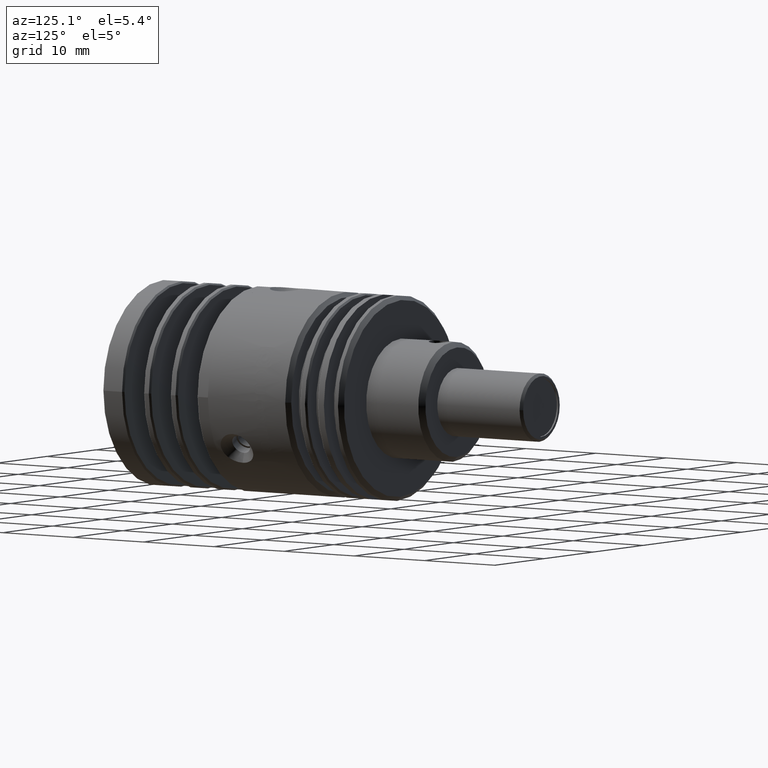
[diagram: clean part render]
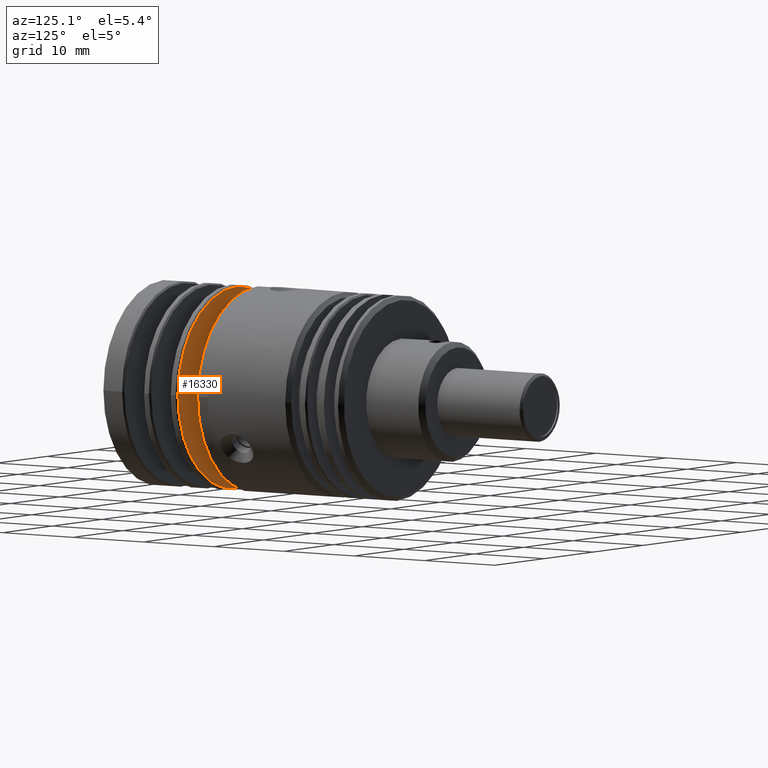
[diagram: same view with one face highlighted and labeled with its STEP entity id]
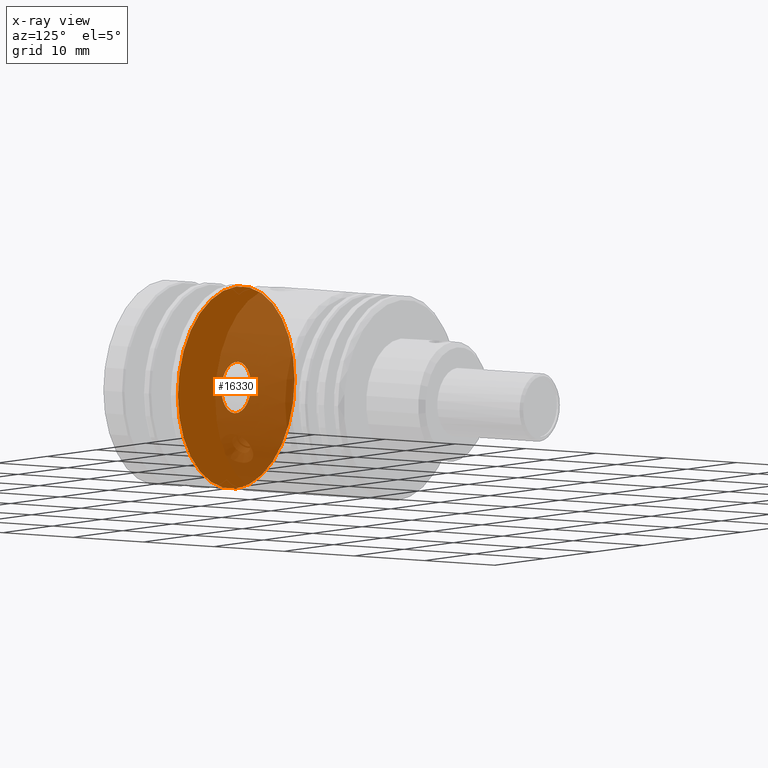
[diagram: x-ray of the same camera — body ghosted, the highlighted face saturated]
A machine part, auxiliary view. The second image highlights one B-rep face of the part: STEP entity #16330.
The next image is the same camera in x-ray: the body ghosted, the highlighted face saturated — about 57% of this face is hidden behind the body in this view.
In plain terms, the highlighted planar face has unit normal (0, 1, 0).
Its self-contained STEP definition (entity closure, byte-faithful):
#319 = CARTESIAN_POINT ( 'NONE',  ( 2.574933787635819815, -20.11493551001260371, -9.174035921659379866 ) ) ;
#1103 = FACE_BOUND ( 'NONE', #4523, .T. ) ;
#1156 = DIRECTION ( 'NONE',  ( -1.000000000000000000, 0.000000000000000000, 0.000000000000000000 ) ) ;
#1686 = CIRCLE ( 'NONE', #19115, 3.000000000000039968 ) ;
#1725 = DIRECTION ( 'NONE',  ( -1.000000000000000000, 0.000000000000000000, 0.000000000000000000 ) ) ;
#2060 = CARTESIAN_POINT ( 'NONE',  ( -0.4250662123642204859, -20.11493551001260371, -9.174035921659379866 ) ) ;
#2242 = ORIENTED_EDGE ( 'NONE', *, *, #15112, .F. ) ;
#2935 = AXIS2_PLACEMENT_3D ( 'NONE', #3870, #14504, #17595 ) ;
#3809 = ORIENTED_EDGE ( 'NONE', *, *, #18324, .T. ) ;
#3870 = CARTESIAN_POINT ( 'NONE',  ( 14.57493378763586023, -20.11493551001260371, -9.174035921659379866 ) ) ;
#3978 = PLANE ( 'NONE',  #2935 ) ;
#4160 = FACE_OUTER_BOUND ( 'NONE', #17572, .T. ) ;
#4252 = CIRCLE ( 'NONE', #18224, 3.000000000000039968 ) ;
#4436 = DIRECTION ( 'NONE',  ( -1.000000000000000000, 0.000000000000000000, 0.000000000000000000 ) ) ;
#4523 = EDGE_LOOP ( 'NONE', ( #3809, #18853 ) ) ;
#4534 = DIRECTION ( 'NONE',  ( 0.000000000000000000, -1.000000000000000000, 0.000000000000000000 ) ) ;
#6289 = CARTESIAN_POINT ( 'NONE',  ( 5.574933787635860227, -20.11493551001260371, -9.174035921659379866 ) ) ;
#6356 = DIRECTION ( 'NONE',  ( 0.000000000000000000, -1.000000000000000000, 0.000000000000000000 ) ) ;
#6646 = VERTEX_POINT ( 'NONE', #7370 ) ;
#7148 = AXIS2_PLACEMENT_3D ( 'NONE', #319, #6356, #1725 ) ;
#7370 = CARTESIAN_POINT ( 'NONE',  ( 14.37493378763583962, -20.11493551001260371, -9.174035921659390524 ) ) ;
#8544 = CIRCLE ( 'NONE', #13648, 11.79999999999999716 ) ;
#9585 = CARTESIAN_POINT ( 'NONE',  ( 2.574933787635819815, -20.11493551001260371, -9.174035921659379866 ) ) ;
#10069 = CARTESIAN_POINT ( 'NONE',  ( -9.225066212364200879, -20.11493551001260371, -9.174035921659379866 ) ) ;
#11122 = VERTEX_POINT ( 'NONE', #6289 ) ;
#11959 = CARTESIAN_POINT ( 'NONE',  ( 2.574933787635819815, -20.11493551001260371, -9.174035921659379866 ) ) ;
#12148 = CARTESIAN_POINT ( 'NONE',  ( 2.574933787635819815, -20.11493551001260371, -9.174035921659379866 ) ) ;
#12818 = VERTEX_POINT ( 'NONE', #10069 ) ;
#13648 = AXIS2_PLACEMENT_3D ( 'NONE', #12148, #4534, #1156 ) ;
#14158 = DIRECTION ( 'NONE',  ( -1.000000000000000000, 0.000000000000000000, 0.000000000000000000 ) ) ;
#14504 = DIRECTION ( 'NONE',  ( 8.260587980841940012E-17, 1.000000000000000000, 0.000000000000000000 ) ) ;
#14853 = ORIENTED_EDGE ( 'NONE', *, *, #18968, .F. ) ;
#15112 = EDGE_CURVE ( 'NONE', #6646, #12818, #8544, .T. ) ;
#15251 = DIRECTION ( 'NONE',  ( 0.000000000000000000, -1.000000000000000000, 0.000000000000000000 ) ) ;
#15652 = DIRECTION ( 'NONE',  ( 0.000000000000000000, -1.000000000000000000, 0.000000000000000000 ) ) ;
#15693 = CIRCLE ( 'NONE', #7148, 11.79999999999999716 ) ;
#16330 = ADVANCED_FACE ( 'NONE', ( #1103, #4160 ), #3978, .T. ) ;
#17179 = EDGE_CURVE ( 'NONE', #11122, #19124, #1686, .T. ) ;
#17572 = EDGE_LOOP ( 'NONE', ( #14853, #2242 ) ) ;
#17595 = DIRECTION ( 'NONE',  ( 1.000000000000000000, -8.260587980841940012E-17, 0.000000000000000000 ) ) ;
#18224 = AXIS2_PLACEMENT_3D ( 'NONE', #11959, #15251, #4436 ) ;
#18324 = EDGE_CURVE ( 'NONE', #19124, #11122, #4252, .T. ) ;
#18853 = ORIENTED_EDGE ( 'NONE', *, *, #17179, .T. ) ;
#18968 = EDGE_CURVE ( 'NONE', #12818, #6646, #15693, .T. ) ;
#19115 = AXIS2_PLACEMENT_3D ( 'NONE', #9585, #15652, #14158 ) ;
#19124 = VERTEX_POINT ( 'NONE', #2060 ) ;